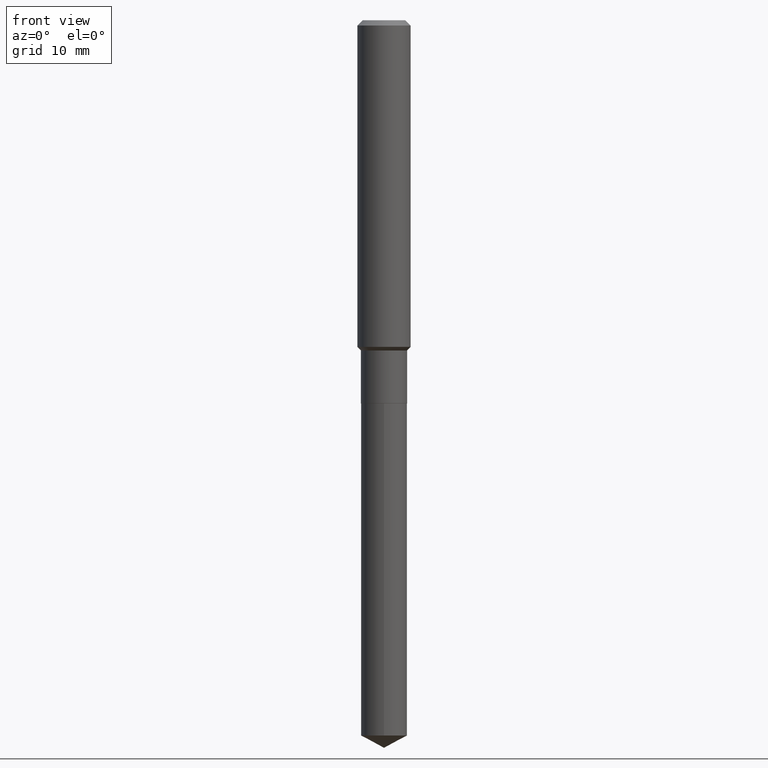
[diagram: clean part render]
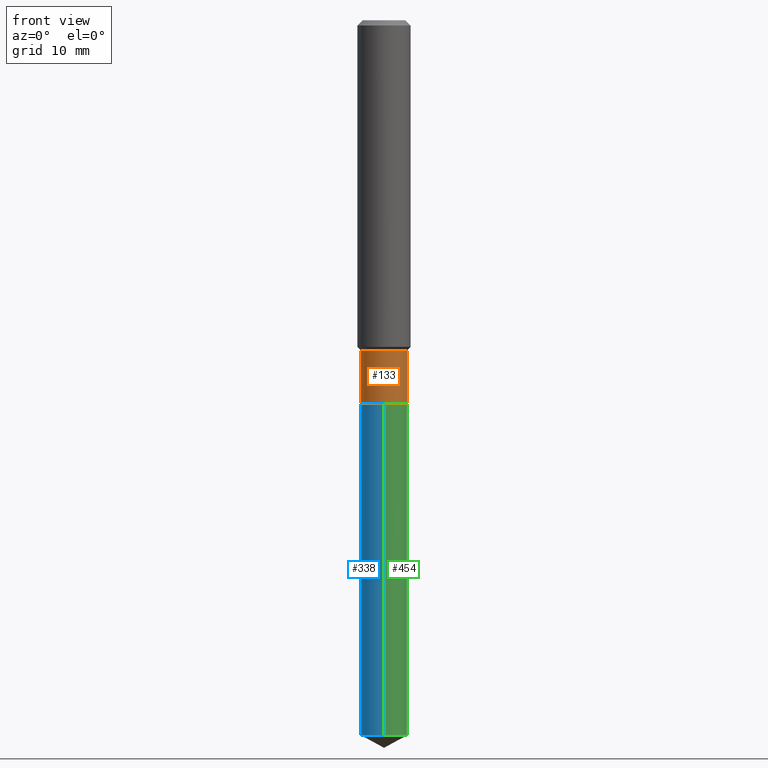
[diagram: same view with three faces highlighted in distinct colors, each labeled with its STEP entity id]
A machine part, front view with three faces highlighted in distinct colors.
Their STEP definitions:

[orange] entity #133 — the highlighted cylindrical surface (edge-blend (fillet) strip) has radius 2.5997 mm, axis along (-0, 0, 1).
#9 = AXIS2_PLACEMENT_3D ( 'NONE', #35, #191, #122 ) ;
#23 = DIRECTION ( 'NONE',  ( -2.445468806185136597E-29, 3.491481338843145583E-15, 1.000000000000000000 ) ) ;
#35 = CARTESIAN_POINT ( 'NONE',  ( 4.157786064275969447E-29, -5.936216572301116605E-15, -1.700200000000000156 ) ) ;
#78 = AXIS2_PLACEMENT_3D ( 'NONE', #311, #23, #245 ) ;
#92 = DIRECTION ( 'NONE',  ( 1.000000000000000000, -6.982962677686266711E-15, 4.876176775795936353E-29 ) ) ;
#115 = VERTEX_POINT ( 'NONE', #196 ) ;
#118 = VERTEX_POINT ( 'NONE', #274 ) ;
#120 = ORIENTED_EDGE ( 'NONE', *, *, #171, .T. ) ;
#122 = DIRECTION ( 'NONE',  ( 1.000000000000000000, -6.982962677686270655E-15, 0.000000000000000000 ) ) ;
#126 = CARTESIAN_POINT ( 'NONE',  ( 0.000000000000000000, 0.000000000000000000, 0.000000000000000000 ) ) ;
#133 = ADVANCED_FACE ( 'NONE', ( #357 ), #461, .T. ) ;
#168 = VERTEX_POINT ( 'NONE', #375 ) ;
#171 = EDGE_CURVE ( 'NONE', #168, #115, #253, .T. ) ;
#176 = CARTESIAN_POINT ( 'NONE',  ( -0.1023499999999999827, 7.272404900504624170E-16, -5.034530064875895945E-30 ) ) ;
#191 = DIRECTION ( 'NONE',  ( -2.445468806185136597E-29, 3.491481338843145583E-15, 1.000000000000000000 ) ) ;
#196 = CARTESIAN_POINT ( 'NONE',  ( 0.1023499999999999965, -6.650922802362306198E-15, -1.700200000000000156 ) ) ;
#208 = EDGE_CURVE ( 'NONE', #168, #118, #408, .T. ) ;
#224 = EDGE_CURVE ( 'NONE', #118, #438, #301, .T. ) ;
#226 = DIRECTION ( 'NONE',  ( -2.445468806185136877E-29, 3.491481338843145188E-15, 1.000000000000000000 ) ) ;
#232 = AXIS2_PLACEMENT_3D ( 'NONE', #126, #284, #92 ) ;
#238 = LINE ( 'NONE', #487, #320 ) ;
#245 = DIRECTION ( 'NONE',  ( 1.000000000000000000, -6.982962677686262766E-15, 0.000000000000000000 ) ) ;
#247 = ORIENTED_EDGE ( 'NONE', *, *, #397, .T. ) ;
#253 = CIRCLE ( 'NONE', #9, 0.1023499999999999965 ) ;
#259 = CARTESIAN_POINT ( 'NONE',  ( 0.1023499999999999688, -5.830773835868049900E-15, -1.465300000000000047 ) ) ;
#268 = VECTOR ( 'NONE', #226, 39.37007874015748143 ) ;
#274 = CARTESIAN_POINT ( 'NONE',  ( -0.1023499999999999688, -4.798901599003526335E-15, -1.465300000000000047 ) ) ;
#277 = DIRECTION ( 'NONE',  ( -2.445468806185136877E-29, 3.491481338843145188E-15, 1.000000000000000000 ) ) ;
#284 = DIRECTION ( 'NONE',  ( -2.445468806185136597E-29, 3.491481338843145583E-15, 1.000000000000000000 ) ) ;
#301 = CIRCLE ( 'NONE', #78, 0.1023499999999999688 ) ;
#311 = CARTESIAN_POINT ( 'NONE',  ( 3.583345441703080840E-29, -5.116067605806861096E-15, -1.465300000000000047 ) ) ;
#320 = VECTOR ( 'NONE', #277, 39.37007874015748143 ) ;
#357 = FACE_OUTER_BOUND ( 'NONE', #476, .T. ) ;
#375 = CARTESIAN_POINT ( 'NONE',  ( -0.1023499999999999965, -4.798901599003526335E-15, -1.700200000000000156 ) ) ;
#397 = EDGE_CURVE ( 'NONE', #115, #438, #238, .T. ) ;
#408 = LINE ( 'NONE', #176, #268 ) ;
#426 = ORIENTED_EDGE ( 'NONE', *, *, #208, .F. ) ;
#438 = VERTEX_POINT ( 'NONE', #259 ) ;
#461 = CYLINDRICAL_SURFACE ( 'NONE', #232, 0.1023499999999999827 ) ;
#475 = ORIENTED_EDGE ( 'NONE', *, *, #224, .F. ) ;
#476 = EDGE_LOOP ( 'NONE', ( #426, #120, #247, #475 ) ) ;
#487 = CARTESIAN_POINT ( 'NONE',  ( 0.1023499999999999827, -7.147062300611892976E-16, 4.990766930027139796E-30 ) ) ;

[blue] entity #338 — the highlighted cylindrical surface (edge-blend (fillet) strip) has radius 2.5997 mm, axis along (-0, 0, 1).
#26 = VECTOR ( 'NONE', #137, 39.37007874015748143 ) ;
#48 = DIRECTION ( 'NONE',  ( -2.445509294301863442E-29, 3.491423357555552008E-15, 1.000000000000000000 ) ) ;
#61 = VERTEX_POINT ( 'NONE', #379 ) ;
#72 = DIRECTION ( 'NONE',  ( -2.445509294301863442E-29, 3.491423357555552008E-15, 1.000000000000000000 ) ) ;
#81 = DIRECTION ( 'NONE',  ( -6.982962677686265922E-15, -1.000000000000000000, 5.338247178630704739E-15 ) ) ;
#89 = EDGE_CURVE ( 'NONE', #216, #61, #440, .T. ) ;
#91 = DIRECTION ( 'NONE',  ( -6.982962677686265922E-15, -1.000000000000000000, 2.669123589315352370E-15 ) ) ;
#110 = CARTESIAN_POINT ( 'NONE',  ( -7.147062300611476852E-16, -0.1023500000000059501, -1.700699999999999656 ) ) ;
#119 = CYLINDRICAL_SURFACE ( 'NONE', #333, 0.1023499999999999965 ) ;
#124 = CARTESIAN_POINT ( 'NONE',  ( 7.761683055116036547E-29, -1.108145576764538429E-14, -3.173879539669447691 ) ) ;
#137 = DIRECTION ( 'NONE',  ( -2.445509294301863442E-29, 3.491423357555552008E-15, 1.000000000000000000 ) ) ;
#187 = ORIENTED_EDGE ( 'NONE', *, *, #89, .T. ) ;
#192 = DIRECTION ( 'NONE',  ( -2.445509294301863442E-29, 3.491423357555552008E-15, 1.000000000000000000 ) ) ;
#197 = AXIS2_PLACEMENT_3D ( 'NONE', #124, #72, #81 ) ;
#206 = CIRCLE ( 'NONE', #264, 0.1023499999999999965 ) ;
#210 = VERTEX_POINT ( 'NONE', #220 ) ;
#216 = VERTEX_POINT ( 'NONE', #411 ) ;
#220 = CARTESIAN_POINT ( 'NONE',  ( 7.272404900505402184E-16, 0.1023499999999940568, -1.700700000000000323 ) ) ;
#230 = CARTESIAN_POINT ( 'NONE',  ( -7.147062300611476852E-16, -0.1023500000000059501, -1.700699999999999656 ) ) ;
#237 = VERTEX_POINT ( 'NONE', #110 ) ;
#258 = EDGE_LOOP ( 'NONE', ( #289, #187, #367, #362 ) ) ;
#264 = AXIS2_PLACEMENT_3D ( 'NONE', #326, #48, #398 ) ;
#270 = EDGE_CURVE ( 'NONE', #61, #237, #418, .T. ) ;
#278 = VECTOR ( 'NONE', #192, 39.37007874015748143 ) ;
#283 = CARTESIAN_POINT ( 'NONE',  ( 4.159008798679061688E-29, -5.937962312970537319E-15, -1.700699999999999878 ) ) ;
#288 = LINE ( 'NONE', #472, #26 ) ;
#289 = ORIENTED_EDGE ( 'NONE', *, *, #419, .F. ) ;
#326 = CARTESIAN_POINT ( 'NONE',  ( 4.159008798679061688E-29, -5.937962312970537319E-15, -1.700699999999999878 ) ) ;
#333 = AXIS2_PLACEMENT_3D ( 'NONE', #283, #420, #91 ) ;
#338 = ADVANCED_FACE ( 'NONE', ( #374 ), #119, .T. ) ;
#362 = ORIENTED_EDGE ( 'NONE', *, *, #442, .F. ) ;
#367 = ORIENTED_EDGE ( 'NONE', *, *, #270, .T. ) ;
#374 = FACE_OUTER_BOUND ( 'NONE', #258, .T. ) ;
#379 = CARTESIAN_POINT ( 'NONE',  ( -7.147062300611113976E-16, -0.1023500000000110433, -3.173879539669447247 ) ) ;
#398 = DIRECTION ( 'NONE',  ( -6.982962677686265922E-15, -1.000000000000000000, 2.669123589315352370E-15 ) ) ;
#411 = CARTESIAN_POINT ( 'NONE',  ( 7.272404900505398240E-16, 0.1023499999999888804, -3.173879539669448135 ) ) ;
#418 = LINE ( 'NONE', #230, #278 ) ;
#419 = EDGE_CURVE ( 'NONE', #216, #210, #288, .T. ) ;
#420 = DIRECTION ( 'NONE',  ( -2.445509294301863442E-29, 3.491423357555552008E-15, 1.000000000000000000 ) ) ;
#440 = CIRCLE ( 'NONE', #197, 0.1023499999999999965 ) ;
#442 = EDGE_CURVE ( 'NONE', #210, #237, #206, .T. ) ;
#472 = CARTESIAN_POINT ( 'NONE',  ( 7.272404900505040294E-16, 0.1023499999999940568, -1.700700000000000323 ) ) ;

[green] entity #454 — the highlighted cylindrical surface (edge-blend (fillet) strip) has radius 2.5997 mm, axis along (-0, 0, 1).
#7 = EDGE_CURVE ( 'NONE', #237, #210, #212, .T. ) ;
#8 = DIRECTION ( 'NONE',  ( -2.445509294301863442E-29, 3.491423357555552008E-15, 1.000000000000000000 ) ) ;
#26 = VECTOR ( 'NONE', #137, 39.37007874015748143 ) ;
#47 = DIRECTION ( 'NONE',  ( -6.982962677686265922E-15, -1.000000000000000000, 2.669123589315352370E-15 ) ) ;
#61 = VERTEX_POINT ( 'NONE', #379 ) ;
#87 = CARTESIAN_POINT ( 'NONE',  ( 4.159008798679061688E-29, -5.937962312970537319E-15, -1.700699999999999878 ) ) ;
#90 = AXIS2_PLACEMENT_3D ( 'NONE', #87, #388, #47 ) ;
#97 = EDGE_LOOP ( 'NONE', ( #144, #393, #439, #295 ) ) ;
#100 = AXIS2_PLACEMENT_3D ( 'NONE', #201, #434, #139 ) ;
#110 = CARTESIAN_POINT ( 'NONE',  ( -7.147062300611476852E-16, -0.1023500000000059501, -1.700699999999999656 ) ) ;
#136 = DIRECTION ( 'NONE',  ( -6.982962677686265922E-15, -1.000000000000000000, 5.338247178630704739E-15 ) ) ;
#137 = DIRECTION ( 'NONE',  ( -2.445509294301863442E-29, 3.491423357555552008E-15, 1.000000000000000000 ) ) ;
#139 = DIRECTION ( 'NONE',  ( -6.982962677686265922E-15, -1.000000000000000000, 2.669123589315352370E-15 ) ) ;
#144 = ORIENTED_EDGE ( 'NONE', *, *, #474, .T. ) ;
#192 = DIRECTION ( 'NONE',  ( -2.445509294301863442E-29, 3.491423357555552008E-15, 1.000000000000000000 ) ) ;
#201 = CARTESIAN_POINT ( 'NONE',  ( 4.159008798679061688E-29, -5.937962312970537319E-15, -1.700699999999999878 ) ) ;
#210 = VERTEX_POINT ( 'NONE', #220 ) ;
#212 = CIRCLE ( 'NONE', #90, 0.1023499999999999965 ) ;
#216 = VERTEX_POINT ( 'NONE', #411 ) ;
#220 = CARTESIAN_POINT ( 'NONE',  ( 7.272404900505402184E-16, 0.1023499999999940568, -1.700700000000000323 ) ) ;
#230 = CARTESIAN_POINT ( 'NONE',  ( -7.147062300611476852E-16, -0.1023500000000059501, -1.700699999999999656 ) ) ;
#237 = VERTEX_POINT ( 'NONE', #110 ) ;
#270 = EDGE_CURVE ( 'NONE', #61, #237, #418, .T. ) ;
#278 = VECTOR ( 'NONE', #192, 39.37007874015748143 ) ;
#288 = LINE ( 'NONE', #472, #26 ) ;
#295 = ORIENTED_EDGE ( 'NONE', *, *, #270, .F. ) ;
#331 = CARTESIAN_POINT ( 'NONE',  ( 7.761683055116036547E-29, -1.108145576764538429E-14, -3.173879539669447691 ) ) ;
#379 = CARTESIAN_POINT ( 'NONE',  ( -7.147062300611113976E-16, -0.1023500000000110433, -3.173879539669447247 ) ) ;
#388 = DIRECTION ( 'NONE',  ( -2.445509294301863442E-29, 3.491423357555552008E-15, 1.000000000000000000 ) ) ;
#393 = ORIENTED_EDGE ( 'NONE', *, *, #419, .T. ) ;
#401 = AXIS2_PLACEMENT_3D ( 'NONE', #331, #8, #136 ) ;
#411 = CARTESIAN_POINT ( 'NONE',  ( 7.272404900505398240E-16, 0.1023499999999888804, -3.173879539669448135 ) ) ;
#418 = LINE ( 'NONE', #230, #278 ) ;
#419 = EDGE_CURVE ( 'NONE', #216, #210, #288, .T. ) ;
#428 = FACE_OUTER_BOUND ( 'NONE', #97, .T. ) ;
#434 = DIRECTION ( 'NONE',  ( -2.445509294301863442E-29, 3.491423357555552008E-15, 1.000000000000000000 ) ) ;
#439 = ORIENTED_EDGE ( 'NONE', *, *, #7, .F. ) ;
#454 = ADVANCED_FACE ( 'NONE', ( #428 ), #465, .T. ) ;
#463 = CIRCLE ( 'NONE', #401, 0.1023499999999999965 ) ;
#465 = CYLINDRICAL_SURFACE ( 'NONE', #100, 0.1023499999999999965 ) ;
#472 = CARTESIAN_POINT ( 'NONE',  ( 7.272404900505040294E-16, 0.1023499999999940568, -1.700700000000000323 ) ) ;
#474 = EDGE_CURVE ( 'NONE', #61, #216, #463, .T. ) ;